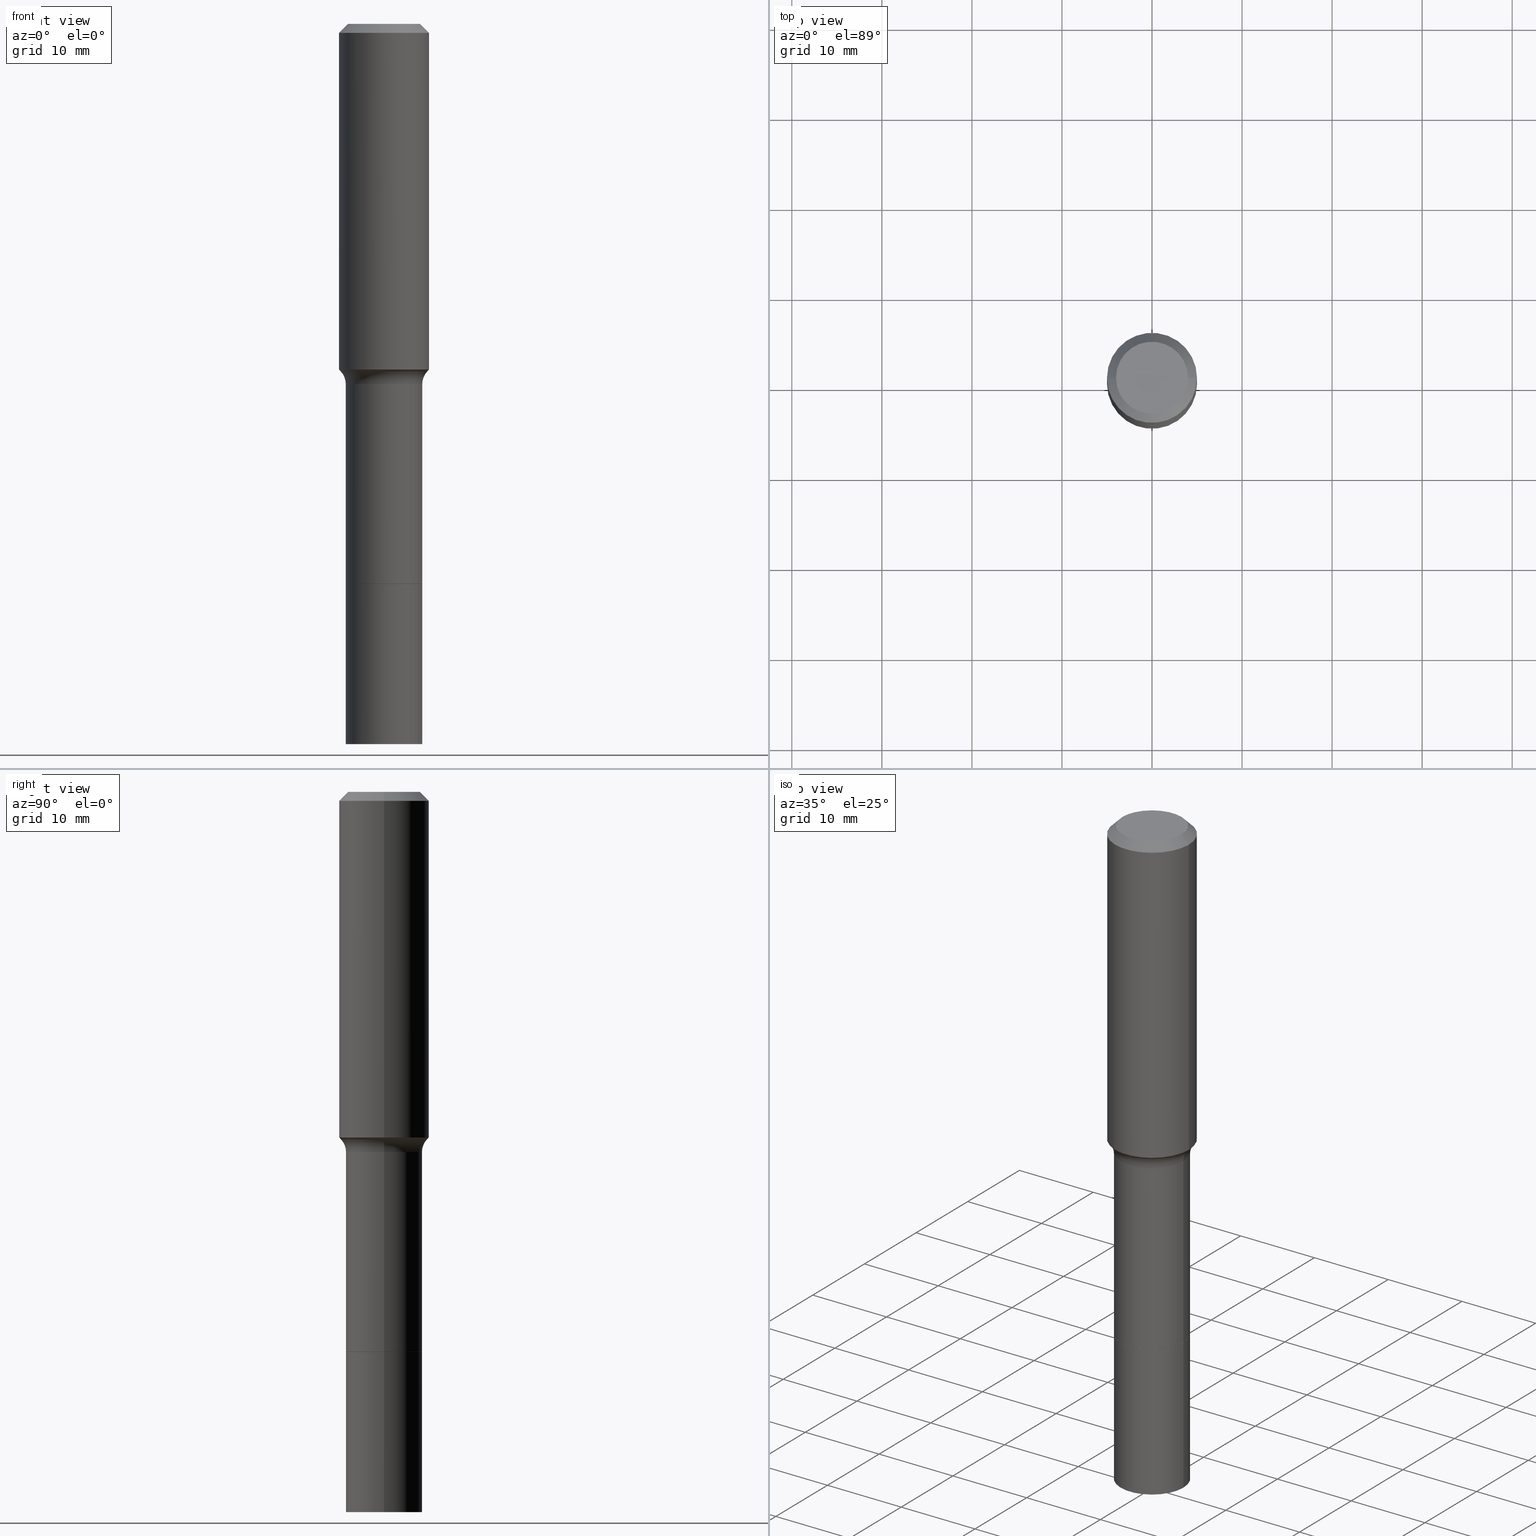
[diagram: canonical four-view strip — front | top / right | iso, engineering-drawing reading convention]
A machine part, canonical four-view strip (front | top / right | iso — engineering-drawing reading convention). The complete STEP part file that produces these views, byte-faithful:
ISO-10303-21;
HEADER;
FILE_DESCRIPTION (( 'STEP AP203' ),
    '1' );
FILE_NAME ('67132.STEP',
    '2025-04-01T15:28:44',
    ( '' ),
    ( '' ),
    'SwSTEP 2.0',
    'SolidWorks 2024',
    '' );
FILE_SCHEMA (( 'CONFIG_CONTROL_DESIGN' ));
ENDSEC;

DATA;
#1 = APPLICATION_PROTOCOL_DEFINITION ( 'international standard', 'config_control_design', 1994, #222 ) ;
#2 = AXIS2_PLACEMENT_3D ( 'NONE', #110, #280, #163 ) ;
#3 = DIRECTION ( 'NONE',  ( -2.445468806185136597E-29, 3.491481338843145583E-15, 1.000000000000000000 ) ) ;
#4 = CIRCLE ( 'NONE', #191, 0.1672999999999999210 ) ;
#5 = PLANE ( 'NONE',  #134 ) ;
#6 = CARTESIAN_POINT ( 'NONE',  ( 0.2472999999999998810, -7.224573186334231203E-15, -1.574600000000000222 ) ) ;
#7 = VERTEX_POINT ( 'NONE', #44 ) ;
#8 = MANIFOLD_SOLID_BREP ( 'Body-Move/Copy2[1]', #111 ) ;
#9 = DIRECTION ( 'NONE',  ( -2.445468806185136597E-29, 3.491481338843145583E-15, 1.000000000000000000 ) ) ;
#10 = CALENDAR_DATE ( 2025, 1, 4 ) ;
#11 = CC_DESIGN_APPROVAL ( #120, ( #200 ) ) ;
#12 = LINE ( 'NONE', #133, #299 ) ;
#13 = PLANE ( 'NONE',  #195 ) ;
#14 = CALENDAR_DATE ( 2025, 1, 4 ) ;
#15 = DIRECTION ( 'NONE',  ( 1.000000000000000000, -6.982962677686265922E-15, 4.876223630392693006E-29 ) ) ;
#16 = AXIS2_PLACEMENT_3D ( 'NONE', #186, #55, #112 ) ;
#17 = CYLINDRICAL_SURFACE ( 'NONE', #430, 0.1968500000000001082 ) ;
#18 = EDGE_CURVE ( 'NONE', #351, #142, #453, .T. ) ;
#19 = DIRECTION ( 'NONE',  ( -2.445468806185136597E-29, 3.491481338843145583E-15, 1.000000000000000000 ) ) ;
#20 = ORIENTED_EDGE ( 'NONE', *, *, #424, .F. ) ;
#21 = VECTOR ( 'NONE', #369, 39.37007874015748143 ) ;
#22 = DIRECTION ( 'NONE',  ( -2.445468806185136597E-29, 3.491481338843145583E-15, 1.000000000000000000 ) ) ;
#23 = EDGE_LOOP ( 'NONE', ( #151, #237, #504, #218 ) ) ;
#24 = AXIS2_PLACEMENT_3D ( 'NONE', #334, #295, #489 ) ;
#25 = FACE_OUTER_BOUND ( 'NONE', #117, .T. ) ;
#26 = CONICAL_SURFACE ( 'NONE', #96, 0.1668000000000000038, 0.7853981633975507526 ) ;
#27 = EDGE_LOOP ( 'NONE', ( #64, #409, #155, #149 ) ) ;
#28 = EDGE_CURVE ( 'NONE', #271, #289, #56, .T. ) ;
#29 = DIRECTION ( 'NONE',  ( 2.438088387897960049E-29, -3.491481338843145188E-15, -1.000000000000000000 ) ) ;
#30 = ORIENTED_EDGE ( 'NONE', *, *, #394, .F. ) ;
#31 = DIRECTION ( 'NONE',  ( 1.000000000000000000, -6.982962677686271444E-15, 0.000000000000000000 ) ) ;
#32 = DIRECTION ( 'NONE',  ( -2.445468806185136597E-29, 3.491481338843145583E-15, 1.000000000000000000 ) ) ;
#33 = PERSON_AND_ORGANIZATION_ROLE ( 'creator' ) ;
#34 = ORIENTED_EDGE ( 'NONE', *, *, #212, .F. ) ;
#35 = ADVANCED_FACE ( 'NONE', ( #353 ), #362, .T. ) ;
#36 = AXIS2_PLACEMENT_3D ( 'NONE', #188, #497, #229 ) ;
#37 = APPROVAL ( #107, 'UNSPECIFIED' ) ;
#38 = APPROVAL_ROLE ( '' ) ;
#39 = ORIENTED_EDGE ( 'NONE', *, *, #394, .T. ) ;
#40 = APPLICATION_PROTOCOL_DEFINITION ( 'international standard', 'config_control_design', 1994, #116 ) ;
#41 = ORIENTED_EDGE ( 'NONE', *, *, #376, .F. ) ;
#42 = EDGE_CURVE ( 'NONE', #289, #429, #108, .T. ) ;
#43 = DIRECTION ( 'NONE',  ( 1.000000000000000000, -6.982962677686264344E-15, 0.000000000000000000 ) ) ;
#44 = CARTESIAN_POINT ( 'NONE',  ( 0.1968500000000000250, -1.512055823412797189E-15, -0.03937000000000025896 ) ) ;
#45 = AXIS2_PLACEMENT_3D ( 'NONE', #6, #330, #82 ) ;
#46 = ORIENTED_EDGE ( 'NONE', *, *, #477, .T. ) ;
#47 = CARTESIAN_POINT ( 'NONE',  ( 0.1668000000000000038, -9.713999380929397844E-15, -2.448600000000000332 ) ) ;
#48 = ORIENTED_EDGE ( 'NONE', *, *, #480, .F. ) ;
#49 = LINE ( 'NONE', #416, #21 ) ;
#50 = VERTEX_POINT ( 'NONE', #357 ) ;
#51 = CIRCLE ( 'NONE', #16, 0.1673000000000002263 ) ;
#52 = EDGE_CURVE ( 'NONE', #201, #287, #103, .T. ) ;
#53 = DIRECTION ( 'NONE',  ( 2.438088387897960049E-29, -3.491481338843145188E-15, -1.000000000000000000 ) ) ;
#54 = DIRECTION ( 'NONE',  ( -2.445468806185136597E-29, 3.491481338843145583E-15, 1.000000000000000000 ) ) ;
#55 = DIRECTION ( 'NONE',  ( -2.445468806185136597E-29, 3.491481338843145583E-15, 1.000000000000000000 ) ) ;
#56 = CIRCLE ( 'NONE', #242, 0.1673000000000000043 ) ;
#57 = CC_DESIGN_APPROVAL ( #37, ( #298 ) ) ;
#58 = DIRECTION ( 'NONE',  ( 1.000000000000000000, -6.982962677686266711E-15, 4.876176775795935793E-29 ) ) ;
#59 = EDGE_CURVE ( 'NONE', #429, #339, #190, .T. ) ;
#60 = ORIENTED_EDGE ( 'NONE', *, *, #205, .T. ) ;
#61 = DIRECTION ( 'NONE',  ( 1.000000000000000000, -6.982962677686272233E-15, 0.000000000000000000 ) ) ;
#62 = ORIENTED_EDGE ( 'NONE', *, *, #18, .T. ) ;
#63 = DIRECTION ( 'NONE',  ( -0.7071067811866199593, 7.493145998870616062E-15, 0.7071067811864750752 ) ) ;
#64 = ORIENTED_EDGE ( 'NONE', *, *, #517, .T. ) ;
#65 = DIRECTION ( 'NONE',  ( 1.000000000000000000, -6.982962677686266711E-15, 0.000000000000000000 ) ) ;
#66 = VECTOR ( 'NONE', #274, 39.37007874015748143 ) ;
#67 = ORIENTED_EDGE ( 'NONE', *, *, #86, .T. ) ;
#68 = EDGE_LOOP ( 'NONE', ( #434, #71 ) ) ;
#69 = DIRECTION ( 'NONE',  ( 1.000000000000000000, -6.982962677686268288E-15, 0.000000000000000000 ) ) ;
#70 = EDGE_CURVE ( 'NONE', #307, #167, #233, .T. ) ;
#71 = ORIENTED_EDGE ( 'NONE', *, *, #310, .F. ) ;
#72 = DATE_TIME_ROLE ( 'creation_date' ) ;
#73 = DIRECTION ( 'NONE',  ( -2.438088387897960049E-29, 3.491481338843145188E-15, 1.000000000000000000 ) ) ;
#74 = AXIS2_PLACEMENT_3D ( 'NONE', #138, #236, #61 ) ;
#75 = DIRECTION ( 'NONE',  ( -2.445468806185136597E-29, 3.491481338843145583E-15, 1.000000000000000000 ) ) ;
#76 = ADVANCED_FACE ( 'NONE', ( #158 ), #5, .F. ) ;
#77 = CARTESIAN_POINT ( 'NONE',  ( 0.1887917038704662043, -6.625517174344292647E-15, -1.520040131195000255 ) ) ;
#78 = EDGE_LOOP ( 'NONE', ( #48, #147, #313, #311 ) ) ;
#79 = ADVANCED_FACE ( 'NONE', ( #484 ), #198, .T. ) ;
#80 = ORIENTED_EDGE ( 'NONE', *, *, #156, .T. ) ;
#81 = ORIENTED_EDGE ( 'NONE', *, *, #424, .T. ) ;
#82 = DIRECTION ( 'NONE',  ( 1.000000000000000000, -6.982962677686265133E-15, 0.000000000000000000 ) ) ;
#83 = ORIENTED_EDGE ( 'NONE', *, *, #235, .F. ) ;
#84 = APPROVAL_ROLE ( '' ) ;
#85 = DIRECTION ( 'NONE',  ( 1.000000000000000000, -6.982962677686265133E-15, 0.000000000000000000 ) ) ;
#86 = EDGE_CURVE ( 'NONE', #142, #351, #427, .T. ) ;
#87 = PERSON ( 'UNSPECIFIED', 'UNSPECIFIED', 'UNSPECIFIED', ('UNSPECIFIED'), ('UNSPECIFIED'), ('UNSPECIFIED') ) ;
#88 = DIRECTION ( 'NONE',  ( 0.6819983600625041387, -2.208861293262532995E-15, 0.7313537016191650197 ) ) ;
#89 = AXIS2_PLACEMENT_3D ( 'NONE', #400, #359, #329 ) ;
#90 = CIRCLE ( 'NONE', #254, 0.1968500000000001915 ) ;
#91 = PERSON_AND_ORGANIZATION ( #87, #448 ) ;
#92 = CARTESIAN_POINT ( 'NONE',  ( -0.1673000000000000043, -5.833852993955513627E-15, -2.448100000000000165 ) ) ;
#93 = CARTESIAN_POINT ( 'NONE',  ( 0.1968500000000001082, -1.374596203102542397E-15, 9.598753983154305062E-30 ) ) ;
#94 = DIRECTION ( 'NONE',  ( 1.000000000000000000, -6.982962677686265922E-15, 0.000000000000000000 ) ) ;
#95 = ORIENTED_EDGE ( 'NONE', *, *, #52, .F. ) ;
#96 = AXIS2_PLACEMENT_3D ( 'NONE', #508, #97, #378 ) ;
#97 = DIRECTION ( 'NONE',  ( -2.445468806185136597E-29, 3.491481338843145583E-15, 1.000000000000000000 ) ) ;
#98 = EDGE_LOOP ( 'NONE', ( #67, #80, #194, #226 ) ) ;
#99 = CARTESIAN_POINT ( 'NONE',  ( 0.1673000000000001153, -9.717490862268239274E-15, -2.448600000000000332 ) ) ;
#100 = ORIENTED_EDGE ( 'NONE', *, *, #135, .F. ) ;
#101 = FACE_OUTER_BOUND ( 'NONE', #23, .T. ) ;
#102 = ORIENTED_EDGE ( 'NONE', *, *, #206, .F. ) ;
#103 = CIRCLE ( 'NONE', #181, 0.1574800000000000089 ) ;
#104 = AXIS2_PLACEMENT_3D ( 'NONE', #505, #265, #381 ) ;
#105 = ORIENTED_EDGE ( 'NONE', *, *, #70, .T. ) ;
#106 = EDGE_CURVE ( 'NONE', #232, #50, #454, .T. ) ;
#107 = APPROVAL_STATUS ( 'not_yet_approved' ) ;
#108 = LINE ( 'NONE', #327, #411 ) ;
#109 = DATE_AND_TIME ( #475, #421 ) ;
#110 = CARTESIAN_POINT ( 'NONE',  ( 5.987974918824925266E-29, -8.549241206291326487E-15, -2.448600000000000332 ) ) ;
#111 = CLOSED_SHELL ( 'NONE', ( #266, #360, #180, #417 ) ) ;
#112 = DIRECTION ( 'NONE',  ( 1.000000000000000000, -6.982962677686271444E-15, 0.000000000000000000 ) ) ;
#113 = CARTESIAN_POINT ( 'NONE',  ( 5.987974918824925266E-29, -8.549241206291326487E-15, -2.448600000000000332 ) ) ;
#114 = CONICAL_SURFACE ( 'NONE', #398, 0.1887917038704660655, 0.7504915783575695221 ) ;
#115 = LOCAL_TIME ( 11, 28, 44.00000000000000000, #121 ) ;
#116 = APPLICATION_CONTEXT ( 'configuration controlled 3d designs of mechanical parts and assemblies' ) ;
#117 = EDGE_LOOP ( 'NONE', ( #392, #389 ) ) ;
#118 = CARTESIAN_POINT ( 'NONE',  ( -0.2472999999999998810, -3.740514330607691625E-15, -1.574600000000000222 ) ) ;
#119 = CARTESIAN_POINT ( 'NONE',  ( 0.1968500000000000250, -1.487948651171581601E-15, -0.03937000000000025896 ) ) ;
#120 = APPROVAL ( #399, 'UNSPECIFIED' ) ;
#121 = COORDINATED_UNIVERSAL_TIME_OFFSET ( 5, 0, .BEHIND. ) ;
#122 = LINE ( 'NONE', #288, #388 ) ;
#123 = ORIENTED_EDGE ( 'NONE', *, *, #227, .F. ) ;
#124 = DATE_AND_TIME ( #450, #372 ) ;
#125 = AXIS2_PLACEMENT_3D ( 'NONE', #160, #323, #365 ) ;
#126 = CYLINDRICAL_SURFACE ( 'NONE', #488, 0.1673000000000001153 ) ;
#127 = ADVANCED_FACE ( 'NONE', ( #209 ), #161, .T. ) ;
#128 = PERSON_AND_ORGANIZATION ( #87, #448 ) ;
#129 = DIRECTION ( 'NONE',  ( -2.445468806185136597E-29, 3.491481338843145583E-15, 1.000000000000000000 ) ) ;
#130 = APPROVAL ( #132, 'UNSPECIFIED' ) ;
#131 = FACE_OUTER_BOUND ( 'NONE', #426, .T. ) ;
#132 = APPROVAL_STATUS ( 'not_yet_approved' ) ;
#133 = CARTESIAN_POINT ( 'NONE',  ( 0.1887917038704660655, -6.625517174344292647E-15, -1.520040131195000255 ) ) ;
#134 = AXIS2_PLACEMENT_3D ( 'NONE', #319, #73, #474 ) ;
#135 = EDGE_CURVE ( 'NONE', #201, #7, #486, .T. ) ;
#136 = VECTOR ( 'NONE', #267, 39.37007874015748143 ) ;
#137 = CARTESIAN_POINT ( 'NONE',  ( 9.627810689950945397E-31, -1.374596203102555315E-16, -0.03937000000000025896 ) ) ;
#138 = CARTESIAN_POINT ( 'NONE',  ( 5.987974918824925266E-29, -8.549241206291326487E-15, -2.448600000000000332 ) ) ;
#139 = AXIS2_PLACEMENT_3D ( 'NONE', #406, #54, #375 ) ;
#140 = VERTEX_POINT ( 'NONE', #512 ) ;
#141 = DIRECTION ( 'NONE',  ( -2.445468806185136597E-29, 3.491481338843145583E-15, 1.000000000000000000 ) ) ;
#142 = VERTEX_POINT ( 'NONE', #77 ) ;
#143 = DESIGN_CONTEXT ( 'detailed design', #116, 'design' ) ;
#144 = AXIS2_PLACEMENT_3D ( 'NONE', #118, #162, #514 ) ;
#145 = APPROVAL_PERSON_ORGANIZATION ( #91, #130, #84 ) ;
#146 = DIRECTION ( 'NONE',  ( -2.445468806185136597E-29, 3.491481338843145583E-15, 1.000000000000000000 ) ) ;
#147 = ORIENTED_EDGE ( 'NONE', *, *, #86, .F. ) ;
#148 = FACE_OUTER_BOUND ( 'NONE', #395, .T. ) ;
#149 = ORIENTED_EDGE ( 'NONE', *, *, #42, .F. ) ;
#150 = CYLINDRICAL_SURFACE ( 'NONE', #104, 0.1672999999999999488 ) ;
#151 = ORIENTED_EDGE ( 'NONE', *, *, #494, .F. ) ;
#152 = CC_DESIGN_PERSON_AND_ORGANIZATION_ASSIGNMENT ( #331, #214, ( #308 ) ) ;
#153 =( CONVERSION_BASED_UNIT ( 'INCH', #166 ) LENGTH_UNIT ( ) NAMED_UNIT ( #202 ) );
#154 = AXIS2_PLACEMENT_3D ( 'NONE', #328, #358, #473 ) ;
#155 = ORIENTED_EDGE ( 'NONE', *, *, #59, .F. ) ;
#156 = EDGE_CURVE ( 'NONE', #351, #384, #122, .T. ) ;
#157 = LINE ( 'NONE', #440, #326 ) ;
#158 = FACE_OUTER_BOUND ( 'NONE', #68, .T. ) ;
#159 = APPROVAL_ROLE ( '' ) ;
#160 = CARTESIAN_POINT ( 'NONE',  ( 9.627810689950945397E-31, -1.374596203102555315E-16, -0.03937000000000025896 ) ) ;
#161 = CONICAL_SURFACE ( 'NONE', #300, 0.1668000000000000038, 0.7853981633975507526 ) ;
#162 = DIRECTION ( 'NONE',  ( 7.105427357601001859E-15, 1.000000000000000000, -3.491481338843145583E-15 ) ) ;
#163 = DIRECTION ( 'NONE',  ( 1.000000000000000000, -6.982962677686269866E-15, 0.000000000000000000 ) ) ;
#164 = TOROIDAL_SURFACE ( 'NONE', #346, 0.2472999999999998810, 0.07999999999999993228 ) ;
#165 = CIRCLE ( 'NONE', #503, 0.1673000000000002263 ) ;
#166 = LENGTH_MEASURE_WITH_UNIT ( LENGTH_MEASURE( 0.02539999999999999897 ), #483 );
#167 = VERTEX_POINT ( 'NONE', #487 ) ;
#168 = CARTESIAN_POINT ( 'NONE',  ( 0.1574800000000000089, -1.284169937930321189E-15, 3.855188123724205385E-18 ) ) ;
#169 = EDGE_CURVE ( 'NONE', #384, #230, #261, .T. ) ;
#170 = VERTEX_POINT ( 'NONE', #264 ) ;
#171 = AXIS2_PLACEMENT_3D ( 'NONE', #173, #452, #85 ) ;
#172 = AXIS2_PLACEMENT_3D ( 'NONE', #204, #3, #437 ) ;
#173 = CARTESIAN_POINT ( 'NONE',  ( 5.987974918824925266E-29, -8.549241206291326487E-15, -2.448600000000000332 ) ) ;
#174 = PERSON_AND_ORGANIZATION ( #87, #448 ) ;
#175 = DIRECTION ( 'NONE',  ( 1.000000000000000000, -6.982962677686267499E-15, 0.000000000000000000 ) ) ;
#176 = EDGE_CURVE ( 'NONE', #339, #429, #4, .T. ) ;
#177 = CARTESIAN_POINT ( 'NONE',  ( 5.987974918824925266E-29, -8.549241206291326487E-15, -2.448600000000000332 ) ) ;
#178 = SECURITY_CLASSIFICATION_LEVEL ( 'unclassified' ) ;
#179 = CARTESIAN_POINT ( 'NONE',  ( -0.1574800000000000089, 1.168406772637159618E-15, 3.855188123707939751E-18 ) ) ;
#180 = ADVANCED_FACE ( 'NONE', ( #496 ), #451, .T. ) ;
#181 = AXIS2_PLACEMENT_3D ( 'NONE', #361, #75, #241 ) ;
#182 = TOROIDAL_SURFACE ( 'NONE', #502, 0.2472999999999998810, 0.07999999999999993228 ) ;
#183 = CIRCLE ( 'NONE', #438, 0.1968500000000000250 ) ;
#184 = FACE_OUTER_BOUND ( 'NONE', #240, .T. ) ;
#185 = ORIENTED_EDGE ( 'NONE', *, *, #212, .T. ) ;
#186 = CARTESIAN_POINT ( 'NONE',  ( 7.702248551960706711E-29, -1.099676962482037231E-14, -3.149600000000000399 ) ) ;
#187 = EDGE_LOOP ( 'NONE', ( #100, #282, #39, #278 ) ) ;
#188 = CARTESIAN_POINT ( 'NONE',  ( 7.702248551960706711E-29, -1.099676962482037231E-14, -3.149600000000000399 ) ) ;
#189 = ORIENTED_EDGE ( 'NONE', *, *, #385, .T. ) ;
#190 = CIRCLE ( 'NONE', #478, 0.1672999999999999210 ) ;
#191 = AXIS2_PLACEMENT_3D ( 'NONE', #410, #458, #175 ) ;
#192 = CIRCLE ( 'NONE', #45, 0.07999999999999993228 ) ;
#193 = PLANE ( 'NONE',  #36 ) ;
#194 = ORIENTED_EDGE ( 'NONE', *, *, #354, .F. ) ;
#195 = AXIS2_PLACEMENT_3D ( 'NONE', #377, #53, #412 ) ;
#196 = LINE ( 'NONE', #422, #224 ) ;
#197 = ORIENTED_EDGE ( 'NONE', *, *, #42, .T. ) ;
#198 = CYLINDRICAL_SURFACE ( 'NONE', #469, 0.1672999999999999488 ) ;
#199 = DIRECTION ( 'NONE',  ( -2.445468806185136877E-29, 3.491481338843145188E-15, 1.000000000000000000 ) ) ;
#200 = PRODUCT_DEFINITION_FORMATION_WITH_SPECIFIED_SOURCE ( 'ANY', '', #491, .NOT_KNOWN. ) ;
#201 = VERTEX_POINT ( 'NONE', #168 ) ;
#202 = DIMENSIONAL_EXPONENTS ( 1.000000000000000000, 0.000000000000000000, 0.000000000000000000, 0.000000000000000000, 0.000000000000000000, 0.000000000000000000, 0.000000000000000000 ) ;
#203 = DIRECTION ( 'NONE',  ( -2.445468806185136597E-29, 3.491481338843145583E-15, 1.000000000000000000 ) ) ;
#204 = CARTESIAN_POINT ( 'NONE',  ( 3.717210724986936016E-29, -5.307191752360030282E-15, -1.520040131195000255 ) ) ;
#205 = EDGE_CURVE ( 'NONE', #142, #230, #12, .T. ) ;
#206 = EDGE_CURVE ( 'NONE', #230, #7, #296, .T. ) ;
#207 = DIRECTION ( 'NONE',  ( 1.000000000000000000, -6.982962677686272233E-15, 0.000000000000000000 ) ) ;
#208 = AXIS2_PLACEMENT_3D ( 'NONE', #404, #32, #250 ) ;
#209 = FACE_OUTER_BOUND ( 'NONE', #373, .T. ) ;
#210 = AXIS2_PLACEMENT_3D ( 'NONE', #312, #141, #58 ) ;
#211 = DIRECTION ( 'NONE',  ( -2.445468806185136597E-29, 3.491481338843145583E-15, 1.000000000000000000 ) ) ;
#212 = EDGE_CURVE ( 'NONE', #167, #307, #367, .T. ) ;
#213 = VECTOR ( 'NONE', #215, 39.37007874015748143 ) ;
#214 = PERSON_AND_ORGANIZATION_ROLE ( 'classification_officer' ) ;
#215 = DIRECTION ( 'NONE',  ( 0.7071067811866199593, -2.468850131083015945E-15, 0.7071067811864750752 ) ) ;
#216 = FACE_OUTER_BOUND ( 'NONE', #342, .T. ) ;
#217 =( GEOMETRIC_REPRESENTATION_CONTEXT ( 3 ) GLOBAL_UNCERTAINTY_ASSIGNED_CONTEXT ( ( #219 ) ) GLOBAL_UNIT_ASSIGNED_CONTEXT ( ( #153, #401, #363 ) ) REPRESENTATION_CONTEXT ( 'NONE', 'WORKASPACE' ) );
#218 = ORIENTED_EDGE ( 'NONE', *, *, #442, .F. ) ;
#219 = UNCERTAINTY_MEASURE_WITH_UNIT (LENGTH_MEASURE( 1.000000000000000082E-05 ), #153, 'distance_accuracy_value', 'NONE');
#220 = FACE_OUTER_BOUND ( 'NONE', #432, .T. ) ;
#221 = LINE ( 'NONE', #47, #213 ) ;
#222 = APPLICATION_CONTEXT ( 'configuration controlled 3d designs of mechanical parts and assemblies' ) ;
#223 = DIRECTION ( 'NONE',  ( 1.000000000000000000, -6.982962677686268288E-15, 0.000000000000000000 ) ) ;
#224 = VECTOR ( 'NONE', #347, 39.37007874015748143 ) ;
#225 = DIRECTION ( 'NONE',  ( -2.445468806185136597E-29, 3.491481338843145583E-15, 1.000000000000000000 ) ) ;
#226 = ORIENTED_EDGE ( 'NONE', *, *, #205, .F. ) ;
#227 = EDGE_CURVE ( 'NONE', #232, #289, #221, .T. ) ;
#228 = CC_DESIGN_PERSON_AND_ORGANIZATION_ASSIGNMENT ( #128, #492, ( #200 ) ) ;
#229 = DIRECTION ( 'NONE',  ( -1.000000000000000000, 6.982962677686265922E-15, -4.876176775795935793E-29 ) ) ;
#230 = VERTEX_POINT ( 'NONE', #366 ) ;
#231 = PLANE ( 'NONE',  #336 ) ;
#232 = VERTEX_POINT ( 'NONE', #256 ) ;
#233 = CIRCLE ( 'NONE', #2, 0.1673000000000000043 ) ;
#234 = VECTOR ( 'NONE', #445, 39.37007874015748143 ) ;
#235 = EDGE_CURVE ( 'NONE', #271, #339, #49, .T. ) ;
#236 = DIRECTION ( 'NONE',  ( -2.445468806185136597E-29, 3.491481338843145583E-15, 1.000000000000000000 ) ) ;
#237 = ORIENTED_EDGE ( 'NONE', *, *, #169, .T. ) ;
#238 = ADVANCED_FACE ( 'NONE', ( #216 ), #182, .F. ) ;
#239 = PERSON_AND_ORGANIZATION ( #87, #448 ) ;
#240 = EDGE_LOOP ( 'NONE', ( #83, #257, #197, #286 ) ) ;
#241 = DIRECTION ( 'NONE',  ( 1.000000000000000000, -6.982962677686265922E-15, 4.876223630392693006E-29 ) ) ;
#242 = AXIS2_PLACEMENT_3D ( 'NONE', #518, #476, #252 ) ;
#243 = PERSON_AND_ORGANIZATION ( #87, #448 ) ;
#244 = APPROVAL_PERSON_ORGANIZATION ( #320, #37, #159 ) ;
#245 = DIRECTION ( 'NONE',  ( -2.445468806185136597E-29, 3.491481338843145583E-15, 1.000000000000000000 ) ) ;
#246 = ADVANCED_FACE ( 'NONE', ( #371 ), #164, .F. ) ;
#247 = CARTESIAN_POINT ( 'NONE',  ( 7.702248551960706711E-29, -1.099676962482037231E-14, -3.149600000000000399 ) ) ;
#248 = CARTESIAN_POINT ( 'NONE',  ( 0.000000000000000000, 0.000000000000000000, 0.000000000000000000 ) ) ;
#249 = ORIENTED_EDGE ( 'NONE', *, *, #480, .T. ) ;
#250 = DIRECTION ( 'NONE',  ( 1.000000000000000000, -6.982962677686268288E-15, 0.000000000000000000 ) ) ;
#251 = PERSON_AND_ORGANIZATION_ROLE ( 'design_supplier' ) ;
#252 = DIRECTION ( 'NONE',  ( 1.000000000000000000, -6.982962677686264344E-15, 0.000000000000000000 ) ) ;
#253 = ADVANCED_FACE ( 'NONE', ( #131 ), #13, .F. ) ;
#254 = AXIS2_PLACEMENT_3D ( 'NONE', #383, #22, #65 ) ;
#255 = ORIENTED_EDGE ( 'NONE', *, *, #135, .T. ) ;
#256 = CARTESIAN_POINT ( 'NONE',  ( 0.1668000000000000038, -9.713999380929397844E-15, -2.448600000000000332 ) ) ;
#257 = ORIENTED_EDGE ( 'NONE', *, *, #28, .T. ) ;
#258 = SHAPE_DEFINITION_REPRESENTATION ( #340, #333 ) ;
#259 = DIRECTION ( 'NONE',  ( 1.000000000000000000, -6.982962677686269077E-15, 4.883557194083114022E-29 ) ) ;
#260 = ORIENTED_EDGE ( 'NONE', *, *, #297, .F. ) ;
#261 = CIRCLE ( 'NONE', #24, 0.1968500000000001915 ) ;
#262 = CARTESIAN_POINT ( 'NONE',  ( 3.850635182219116347E-29, -5.497686516142417553E-15, -1.574600000000000222 ) ) ;
#263 = CC_DESIGN_DATE_AND_TIME_ASSIGNMENT ( #124, #415, ( #308 ) ) ;
#264 = CARTESIAN_POINT ( 'NONE',  ( -0.1673000000000002263, -8.584267418629199390E-15, -3.149600000000000399 ) ) ;
#265 = DIRECTION ( 'NONE',  ( -2.445468806185136597E-29, 3.491481338843145583E-15, 1.000000000000000000 ) ) ;
#266 = ADVANCED_FACE ( 'NONE', ( #220 ), #126, .T. ) ;
#267 = DIRECTION ( 'NONE',  ( -0.7071067811865453523, 2.468850131082234184E-15, -0.7071067811865496822 ) ) ;
#268 = ORIENTED_EDGE ( 'NONE', *, *, #156, .F. ) ;
#269 = LOCAL_TIME ( 11, 28, 44.00000000000000000, #370 ) ;
#270 = CARTESIAN_POINT ( 'NONE',  ( -0.1672999999999999210, -5.833852993955514416E-15, -1.574600000000000222 ) ) ;
#271 = VERTEX_POINT ( 'NONE', #92 ) ;
#272 = DIRECTION ( 'NONE',  ( -1.000000000000000000, 6.982962677686265922E-15, 0.000000000000000000 ) ) ;
#273 = ORIENTED_EDGE ( 'NONE', *, *, #70, .F. ) ;
#274 = DIRECTION ( 'NONE',  ( -2.445468806185136877E-29, 3.491481338843145188E-15, 1.000000000000000000 ) ) ;
#275 = EDGE_LOOP ( 'NONE', ( #185, #105 ) ) ;
#276 = EDGE_CURVE ( 'NONE', #287, #201, #284, .T. ) ;
#277 = AXIS2_PLACEMENT_3D ( 'NONE', #291, #9, #15 ) ;
#278 = ORIENTED_EDGE ( 'NONE', *, *, #442, .T. ) ;
#279 = COORDINATED_UNIVERSAL_TIME_OFFSET ( 5, 0, .BEHIND. ) ;
#280 = DIRECTION ( 'NONE',  ( -2.445468806185136597E-29, 3.491481338843145583E-15, 1.000000000000000000 ) ) ;
#281 = CARTESIAN_POINT ( 'NONE',  ( 5.986752184421833586E-29, -8.547495465621905772E-15, -2.448100000000000165 ) ) ;
#282 = ORIENTED_EDGE ( 'NONE', *, *, #276, .F. ) ;
#283 = DATE_AND_TIME ( #322, #292 ) ;
#284 = CIRCLE ( 'NONE', #277, 0.1574800000000000089 ) ;
#285 = DIRECTION ( 'NONE',  ( -2.445468806185136597E-29, 3.491481338843145583E-15, 1.000000000000000000 ) ) ;
#286 = ORIENTED_EDGE ( 'NONE', *, *, #176, .F. ) ;
#287 = VERTEX_POINT ( 'NONE', #179 ) ;
#288 = CARTESIAN_POINT ( 'NONE',  ( -0.1887917038704660655, -3.965746014790713751E-15, -1.520040131195000255 ) ) ;
#289 = VERTEX_POINT ( 'NONE', #335 ) ;
#290 = APPROVAL_DATE_TIME ( #485, #130 ) ;
#291 = CARTESIAN_POINT ( 'NONE',  ( -9.427742298522567634E-47, 1.346031739168368355E-32, 3.855188123715870730E-18 ) ) ;
#292 = LOCAL_TIME ( 11, 28, 44.00000000000000000, #279 ) ;
#293 = EDGE_CURVE ( 'NONE', #7, #500, #405, .T. ) ;
#294 = COORDINATED_UNIVERSAL_TIME_OFFSET ( 5, 0, .BEHIND. ) ;
#295 = DIRECTION ( 'NONE',  ( -2.445468806185136597E-29, 3.491481338843145583E-15, 1.000000000000000000 ) ) ;
#296 = LINE ( 'NONE', #93, #303 ) ;
#297 = EDGE_CURVE ( 'NONE', #142, #429, #192, .T. ) ;
#298 = PRODUCT_DEFINITION ( 'UNKNOWN', '', #200, #143 ) ;
#299 = VECTOR ( 'NONE', #88, 39.37007874015748854 ) ;
#300 = AXIS2_PLACEMENT_3D ( 'NONE', #113, #441, #207 ) ;
#301 = DIRECTION ( 'NONE',  ( -2.445468806185136597E-29, 3.491481338843145583E-15, 1.000000000000000000 ) ) ;
#302 = DIRECTION ( 'NONE',  ( -2.445468806185136597E-29, 3.491481338843145583E-15, 1.000000000000000000 ) ) ;
#303 = VECTOR ( 'NONE', #457, 39.37007874015748143 ) ;
#304 = LINE ( 'NONE', #309, #136 ) ;
#305 = EDGE_LOOP ( 'NONE', ( #460, #482, #447, #102 ) ) ;
#306 = CARTESIAN_POINT ( 'NONE',  ( 5.987974918824925266E-29, -8.549241206291326487E-15, -2.448600000000000332 ) ) ;
#307 = VERTEX_POINT ( 'NONE', #408 ) ;
#308 = SECURITY_CLASSIFICATION ( '', '', #178 ) ;
#309 = CARTESIAN_POINT ( 'NONE',  ( -0.1968500000000000250, 1.237136582792286225E-15, -0.03937000000000025896 ) ) ;
#310 = EDGE_CURVE ( 'NONE', #50, #232, #390, .T. ) ;
#311 = ORIENTED_EDGE ( 'NONE', *, *, #59, .T. ) ;
#312 = CARTESIAN_POINT ( 'NONE',  ( 0.000000000000000000, 0.000000000000000000, 0.000000000000000000 ) ) ;
#313 = ORIENTED_EDGE ( 'NONE', *, *, #297, .T. ) ;
#314 = ADVANCED_FACE ( 'NONE', ( #101 ), #17, .T. ) ;
#315 = CC_DESIGN_DATE_AND_TIME_ASSIGNMENT ( #109, #72, ( #298 ) ) ;
#316 = LINE ( 'NONE', #391, #481 ) ;
#317 = EDGE_LOOP ( 'NONE', ( #20, #348, #189, #273 ) ) ;
#318 = CIRCLE ( 'NONE', #144, 0.07999999999999993228 ) ;
#319 = CARTESIAN_POINT ( 'NONE',  ( 5.987974918824925266E-29, -8.549241206291326487E-15, -2.448600000000000332 ) ) ;
#320 = PERSON_AND_ORGANIZATION ( #87, #448 ) ;
#321 = ORIENTED_EDGE ( 'NONE', *, *, #376, .T. ) ;
#322 = CALENDAR_DATE ( 2025, 1, 4 ) ;
#323 = DIRECTION ( 'NONE',  ( 2.445468806185136597E-29, -3.491481338843145583E-15, -1.000000000000000000 ) ) ;
#324 = CLOSED_SHELL ( 'NONE', ( #127, #349, #414, #506, #238, #79, #435, #246, #468, #314, #35, #253, #76, #431 ) ) ;
#325 = FACE_OUTER_BOUND ( 'NONE', #98, .T. ) ;
#326 = VECTOR ( 'NONE', #199, 39.37007874015748143 ) ;
#327 = CARTESIAN_POINT ( 'NONE',  ( 0.1672999999999999488, -1.168249655976912195E-15, 8.157843745906598810E-30 ) ) ;
#328 = CARTESIAN_POINT ( 'NONE',  ( 0.000000000000000000, 0.000000000000000000, 0.000000000000000000 ) ) ;
#329 = DIRECTION ( 'NONE',  ( 1.000000000000000000, -6.982962677686272233E-15, 0.000000000000000000 ) ) ;
#330 = DIRECTION ( 'NONE',  ( -6.982962677686266711E-15, -1.000000000000000000, 3.491481338843145583E-15 ) ) ;
#331 = PERSON_AND_ORGANIZATION ( #87, #448 ) ;
#332 = CARTESIAN_POINT ( 'NONE',  ( 3.850635182219116347E-29, -5.497686516142417553E-15, -1.574600000000000222 ) ) ;
#333 = ADVANCED_BREP_SHAPE_REPRESENTATION ( '67132', ( #8, #355, #154 ), #217 ) ;
#334 = CARTESIAN_POINT ( 'NONE',  ( 3.696078292805706641E-29, -5.277020239880085119E-15, -1.511398666569575111 ) ) ;
#335 = CARTESIAN_POINT ( 'NONE',  ( 0.1673000000000000043, -9.715745121598816981E-15, -2.448100000000000165 ) ) ;
#336 = AXIS2_PLACEMENT_3D ( 'NONE', #306, #29, #461 ) ;
#337 = CC_DESIGN_PERSON_AND_ORGANIZATION_ASSIGNMENT ( #174, #251, ( #200 ) ) ;
#338 = DIRECTION ( 'NONE',  ( 1.000000000000000000, -6.982962677686266711E-15, 4.876176775795935793E-29 ) ) ;
#339 = VERTEX_POINT ( 'NONE', #270 ) ;
#340 = PRODUCT_DEFINITION_SHAPE ( 'NONE', 'NONE',  #298 ) ;
#341 = FACE_OUTER_BOUND ( 'NONE', #420, .T. ) ;
#342 = EDGE_LOOP ( 'NONE', ( #443, #249, #465, #260 ) ) ;
#343 = CARTESIAN_POINT ( 'NONE',  ( 0.000000000000000000, 0.000000000000000000, 0.000000000000000000 ) ) ;
#344 = ORIENTED_EDGE ( 'NONE', *, *, #293, .T. ) ;
#345 = CC_DESIGN_SECURITY_CLASSIFICATION ( #308, ( #200 ) ) ;
#346 = AXIS2_PLACEMENT_3D ( 'NONE', #262, #301, #490 ) ;
#347 = DIRECTION ( 'NONE',  ( -2.445468806185136877E-29, 3.491481338843145188E-15, 1.000000000000000000 ) ) ;
#348 = ORIENTED_EDGE ( 'NONE', *, *, #510, .T. ) ;
#349 = ADVANCED_FACE ( 'NONE', ( #341 ), #495, .T. ) ;
#350 = FACE_OUTER_BOUND ( 'NONE', #507, .T. ) ;
#351 = VERTEX_POINT ( 'NONE', #419 ) ;
#352 = PERSON_AND_ORGANIZATION_ROLE ( 'design_owner' ) ;
#353 = FACE_OUTER_BOUND ( 'NONE', #187, .T. ) ;
#354 = EDGE_CURVE ( 'NONE', #230, #384, #90, .T. ) ;
#355 = MANIFOLD_SOLID_BREP ( 'Body-Move/Copy2[2]', #324 ) ;
#356 = COORDINATED_UNIVERSAL_TIME_OFFSET ( 5, 0, .BEHIND. ) ;
#357 = CARTESIAN_POINT ( 'NONE',  ( -0.1668000000000000038, -7.361406695869368543E-15, -2.448600000000000332 ) ) ;
#358 = DIRECTION ( 'NONE',  ( 0.000000000000000000, 0.000000000000000000, 1.000000000000000000 ) ) ;
#359 = DIRECTION ( 'NONE',  ( -2.445468806185136597E-29, 3.491481338843145583E-15, 1.000000000000000000 ) ) ;
#360 = ADVANCED_FACE ( 'NONE', ( #25 ), #193, .T. ) ;
#361 = CARTESIAN_POINT ( 'NONE',  ( -9.427742298522567634E-47, 1.346031739168368355E-32, 3.855188123715870730E-18 ) ) ;
#362 = CONICAL_SURFACE ( 'NONE', #125, 0.1968500000000000250, 0.7853981633974452814 ) ;
#363 =( NAMED_UNIT ( * ) SI_UNIT ( $, .STERADIAN. ) SOLID_ANGLE_UNIT ( ) );
#364 = AXIS2_PLACEMENT_3D ( 'NONE', #137, #302, #449 ) ;
#365 = DIRECTION ( 'NONE',  ( -1.000000000000000000, 6.982962677686265922E-15, 0.000000000000000000 ) ) ;
#366 = CARTESIAN_POINT ( 'NONE',  ( 0.1968500000000001915, -6.651616442982627516E-15, -1.511398666569575111 ) ) ;
#367 = CIRCLE ( 'NONE', #139, 0.1673000000000000043 ) ;
#368 = ORIENTED_EDGE ( 'NONE', *, *, #52, .T. ) ;
#369 = DIRECTION ( 'NONE',  ( -2.445468806185136877E-29, 3.491481338843145188E-15, 1.000000000000000000 ) ) ;
#370 = COORDINATED_UNIVERSAL_TIME_OFFSET ( 5, 0, .BEHIND. ) ;
#371 = FACE_OUTER_BOUND ( 'NONE', #78, .T. ) ;
#372 = LOCAL_TIME ( 11, 28, 44.00000000000000000, #294 ) ;
#373 = EDGE_LOOP ( 'NONE', ( #407, #321, #509, #123 ) ) ;
#374 = APPROVAL_DATE_TIME ( #455, #120 ) ;
#375 = DIRECTION ( 'NONE',  ( 1.000000000000000000, -6.982962677686269866E-15, 0.000000000000000000 ) ) ;
#376 = EDGE_CURVE ( 'NONE', #50, #271, #316, .T. ) ;
#377 = CARTESIAN_POINT ( 'NONE',  ( -4.713871149261283817E-47, 6.730158695841841775E-33, 1.927594061857935365E-18 ) ) ;
#378 = DIRECTION ( 'NONE',  ( 1.000000000000000000, -6.982962677686272233E-15, 0.000000000000000000 ) ) ;
#379 = CIRCLE ( 'NONE', #456, 0.1673000000000000043 ) ;
#380 = PRODUCT_RELATED_PRODUCT_CATEGORY ( 'detail', '', ( #491 ) ) ;
#381 = DIRECTION ( 'NONE',  ( 1.000000000000000000, -6.982962677686267499E-15, 4.876176775795936353E-29 ) ) ;
#382 = ORIENTED_EDGE ( 'NONE', *, *, #28, .F. ) ;
#383 = CARTESIAN_POINT ( 'NONE',  ( 3.696078292805706641E-29, -5.277020239880085119E-15, -1.511398666569575111 ) ) ;
#384 = VERTEX_POINT ( 'NONE', #470 ) ;
#385 = EDGE_CURVE ( 'NONE', #140, #167, #425, .T. ) ;
#386 = CC_DESIGN_PERSON_AND_ORGANIZATION_ASSIGNMENT ( #239, #352, ( #491 ) ) ;
#387 = CARTESIAN_POINT ( 'NONE',  ( 9.627810689950945397E-31, -1.374596203102555315E-16, -0.03937000000000025896 ) ) ;
#388 = VECTOR ( 'NONE', #446, 39.37007874015748854 ) ;
#389 = ORIENTED_EDGE ( 'NONE', *, *, #510, .F. ) ;
#390 = CIRCLE ( 'NONE', #74, 0.1668000000000000038 ) ;
#391 = CARTESIAN_POINT ( 'NONE',  ( -0.1668000000000000038, -7.364055923043480533E-15, -2.448600000000000332 ) ) ;
#392 = ORIENTED_EDGE ( 'NONE', *, *, #477, .F. ) ;
#393 = CARTESIAN_POINT ( 'NONE',  ( 3.717210724986936016E-29, -5.307191752360030282E-15, -1.520040131195000255 ) ) ;
#394 = EDGE_CURVE ( 'NONE', #287, #500, #304, .T. ) ;
#395 = EDGE_LOOP ( 'NONE', ( #268, #62, #60, #471 ) ) ;
#396 = PERSON_AND_ORGANIZATION ( #87, #448 ) ;
#397 = CARTESIAN_POINT ( 'NONE',  ( 3.850635182219116347E-29, -5.497686516142417553E-15, -1.574600000000000222 ) ) ;
#398 = AXIS2_PLACEMENT_3D ( 'NONE', #393, #203, #69 ) ;
#399 = APPROVAL_STATUS ( 'not_yet_approved' ) ;
#400 = CARTESIAN_POINT ( 'NONE',  ( 5.987974918824925266E-29, -8.549241206291326487E-15, -2.448600000000000332 ) ) ;
#401 =( NAMED_UNIT ( * ) PLANE_ANGLE_UNIT ( ) SI_UNIT ( $, .RADIAN. ) );
#402 = DIRECTION ( 'NONE',  ( -2.445468806185136877E-29, 3.491481338843145188E-15, 1.000000000000000000 ) ) ;
#403 = CC_DESIGN_PERSON_AND_ORGANIZATION_ASSIGNMENT ( #396, #33, ( #298 ) ) ;
#404 = CARTESIAN_POINT ( 'NONE',  ( 3.717210724986936016E-29, -5.307191752360030282E-15, -1.520040131195000255 ) ) ;
#405 = CIRCLE ( 'NONE', #364, 0.1968500000000000250 ) ;
#406 = CARTESIAN_POINT ( 'NONE',  ( 5.987974918824925266E-29, -8.549241206291326487E-15, -2.448600000000000332 ) ) ;
#407 = ORIENTED_EDGE ( 'NONE', *, *, #106, .T. ) ;
#408 = CARTESIAN_POINT ( 'NONE',  ( -0.1673000000000000043, -8.584267418629200968E-15, -2.448600000000000332 ) ) ;
#409 = ORIENTED_EDGE ( 'NONE', *, *, #235, .T. ) ;
#410 = CARTESIAN_POINT ( 'NONE',  ( 3.850635182219116347E-29, -5.497686516142417553E-15, -1.574600000000000222 ) ) ;
#411 = VECTOR ( 'NONE', #402, 39.37007874015748143 ) ;
#412 = DIRECTION ( 'NONE',  ( -1.000000000000000000, 6.982962677686265922E-15, -4.876176775795935793E-29 ) ) ;
#413 = CC_DESIGN_APPROVAL ( #130, ( #308 ) ) ;
#414 = ADVANCED_FACE ( 'NONE', ( #418 ), #428, .T. ) ;
#415 = DATE_TIME_ROLE ( 'classification_date' ) ;
#416 = CARTESIAN_POINT ( 'NONE',  ( -0.1672999999999999488, 1.188737996926647247E-15, -8.229378405996454748E-30 ) ) ;
#417 = ADVANCED_FACE ( 'NONE', ( #466 ), #231, .F. ) ;
#418 = FACE_OUTER_BOUND ( 'NONE', #305, .T. ) ;
#419 = CARTESIAN_POINT ( 'NONE',  ( -0.1887917038704662043, -3.965746014790712962E-15, -1.520040131195000255 ) ) ;
#420 = EDGE_LOOP ( 'NONE', ( #95, #255, #344, #30 ) ) ;
#421 = LOCAL_TIME ( 11, 28, 44.00000000000000000, #356 ) ;
#422 = CARTESIAN_POINT ( 'NONE',  ( -0.1673000000000001153, -7.360503209364678846E-15, -2.448600000000000332 ) ) ;
#423 = ORIENTED_EDGE ( 'NONE', *, *, #227, .T. ) ;
#424 = EDGE_CURVE ( 'NONE', #170, #307, #196, .T. ) ;
#425 = LINE ( 'NONE', #99, #66 ) ;
#426 = EDGE_LOOP ( 'NONE', ( #467, #368 ) ) ;
#427 = CIRCLE ( 'NONE', #208, 0.1887917038704660655 ) ;
#428 = CYLINDRICAL_SURFACE ( 'NONE', #210, 0.1968500000000001082 ) ;
#429 = VERTEX_POINT ( 'NONE', #459 ) ;
#430 = AXIS2_PLACEMENT_3D ( 'NONE', #343, #225, #338 ) ;
#431 = ADVANCED_FACE ( 'NONE', ( #350 ), #26, .T. ) ;
#432 = EDGE_LOOP ( 'NONE', ( #46, #81, #34, #462 ) ) ;
#433 = APPROVAL_DATE_TIME ( #283, #37 ) ;
#434 = ORIENTED_EDGE ( 'NONE', *, *, #106, .F. ) ;
#435 = ADVANCED_FACE ( 'NONE', ( #184 ), #150, .T. ) ;
#436 = DIRECTION ( 'NONE',  ( -2.445468806185136597E-29, 3.491481338843145583E-15, 1.000000000000000000 ) ) ;
#437 = DIRECTION ( 'NONE',  ( 1.000000000000000000, -6.982962677686268288E-15, 0.000000000000000000 ) ) ;
#438 = AXIS2_PLACEMENT_3D ( 'NONE', #501, #146, #94 ) ;
#439 = AXIS2_PLACEMENT_3D ( 'NONE', #387, #499, #272 ) ;
#440 = CARTESIAN_POINT ( 'NONE',  ( -0.1968500000000001082, 1.398703375343757985E-15, -9.682923725166787881E-30 ) ) ;
#441 = DIRECTION ( 'NONE',  ( -2.445468806185136597E-29, 3.491481338843145583E-15, 1.000000000000000000 ) ) ;
#442 = EDGE_CURVE ( 'NONE', #500, #7, #183, .T. ) ;
#443 = ORIENTED_EDGE ( 'NONE', *, *, #18, .F. ) ;
#444 = DIRECTION ( 'NONE',  ( -2.445468806185136597E-29, 3.491481338843145583E-15, 1.000000000000000000 ) ) ;
#445 = DIRECTION ( 'NONE',  ( 0.7071067811865453523, -7.319954787623248157E-15, -0.7071067811865496822 ) ) ;
#446 = DIRECTION ( 'NONE',  ( -0.6819983600625041387, 7.399397606724308664E-15, 0.7313537016191650197 ) ) ;
#447 = ORIENTED_EDGE ( 'NONE', *, *, #293, .F. ) ;
#448 = ORGANIZATION ( 'UNSPECIFIED', 'UNSPECIFIED', '' ) ;
#449 = DIRECTION ( 'NONE',  ( 1.000000000000000000, -6.982962677686265922E-15, 0.000000000000000000 ) ) ;
#450 = CALENDAR_DATE ( 2025, 1, 4 ) ;
#451 = CYLINDRICAL_SURFACE ( 'NONE', #171, 0.1673000000000001153 ) ;
#452 = DIRECTION ( 'NONE',  ( -2.445468806185136597E-29, 3.491481338843145583E-15, 1.000000000000000000 ) ) ;
#453 = CIRCLE ( 'NONE', #172, 0.1887917038704660655 ) ;
#454 = CIRCLE ( 'NONE', #89, 0.1668000000000000038 ) ;
#455 = DATE_AND_TIME ( #14, #269 ) ;
#456 = AXIS2_PLACEMENT_3D ( 'NONE', #281, #436, #43 ) ;
#457 = DIRECTION ( 'NONE',  ( -2.445468806185136877E-29, 3.491481338843145188E-15, 1.000000000000000000 ) ) ;
#458 = DIRECTION ( 'NONE',  ( -2.445468806185136597E-29, 3.491481338843145583E-15, 1.000000000000000000 ) ) ;
#459 = CARTESIAN_POINT ( 'NONE',  ( 0.1672999999999999210, -6.665936172119329551E-15, -1.574600000000000222 ) ) ;
#460 = ORIENTED_EDGE ( 'NONE', *, *, #354, .T. ) ;
#461 = DIRECTION ( 'NONE',  ( -1.000000000000000000, 6.982962677686265922E-15, -4.876176775795935793E-29 ) ) ;
#462 = ORIENTED_EDGE ( 'NONE', *, *, #385, .F. ) ;
#463 = APPROVAL_PERSON_ORGANIZATION ( #243, #120, #38 ) ;
#464 = CARTESIAN_POINT ( 'NONE',  ( 3.717210724986936016E-29, -5.307191752360030282E-15, -1.520040131195000255 ) ) ;
#465 = ORIENTED_EDGE ( 'NONE', *, *, #176, .T. ) ;
#466 = FACE_OUTER_BOUND ( 'NONE', #275, .T. ) ;
#467 = ORIENTED_EDGE ( 'NONE', *, *, #276, .T. ) ;
#468 = ADVANCED_FACE ( 'NONE', ( #148 ), #513, .T. ) ;
#469 = AXIS2_PLACEMENT_3D ( 'NONE', #248, #245, #479 ) ;
#470 = CARTESIAN_POINT ( 'NONE',  ( -0.1968500000000001915, -3.878316864536326542E-15, -1.511398666569575111 ) ) ;
#471 = ORIENTED_EDGE ( 'NONE', *, *, #169, .F. ) ;
#472 = AXIS2_PLACEMENT_3D ( 'NONE', #464, #19, #223 ) ;
#473 = DIRECTION ( 'NONE',  ( 1.000000000000000000, 0.000000000000000000, 0.000000000000000000 ) ) ;
#474 = DIRECTION ( 'NONE',  ( 1.000000000000000000, -6.982962677686265922E-15, 4.876176775795935793E-29 ) ) ;
#475 = CALENDAR_DATE ( 2025, 1, 4 ) ;
#476 = DIRECTION ( 'NONE',  ( -2.445468806185136597E-29, 3.491481338843145583E-15, 1.000000000000000000 ) ) ;
#477 = EDGE_CURVE ( 'NONE', #140, #170, #51, .T. ) ;
#478 = AXIS2_PLACEMENT_3D ( 'NONE', #397, #285, #515 ) ;
#479 = DIRECTION ( 'NONE',  ( 1.000000000000000000, -6.982962677686267499E-15, 4.876176775795936353E-29 ) ) ;
#480 = EDGE_CURVE ( 'NONE', #351, #339, #318, .T. ) ;
#481 = VECTOR ( 'NONE', #63, 39.37007874015748143 ) ;
#482 = ORIENTED_EDGE ( 'NONE', *, *, #494, .T. ) ;
#483 =( LENGTH_UNIT ( ) NAMED_UNIT ( * ) SI_UNIT ( $, .METRE. ) );
#484 = FACE_OUTER_BOUND ( 'NONE', #27, .T. ) ;
#485 = DATE_AND_TIME ( #10, #115 ) ;
#486 = LINE ( 'NONE', #119, #234 ) ;
#487 = CARTESIAN_POINT ( 'NONE',  ( 0.1673000000000000043, -9.717490862268239274E-15, -2.448600000000000332 ) ) ;
#488 = AXIS2_PLACEMENT_3D ( 'NONE', #177, #211, #493 ) ;
#489 = DIRECTION ( 'NONE',  ( 1.000000000000000000, -6.982962677686266711E-15, 0.000000000000000000 ) ) ;
#490 = DIRECTION ( 'NONE',  ( 1.000000000000000000, -6.982962677686269077E-15, 4.883557194083114022E-29 ) ) ;
#491 = PRODUCT ( '67132', '67132', '', ( #516 ) ) ;
#492 = PERSON_AND_ORGANIZATION_ROLE ( 'creator' ) ;
#493 = DIRECTION ( 'NONE',  ( 1.000000000000000000, -6.982962677686265133E-15, 0.000000000000000000 ) ) ;
#494 = EDGE_CURVE ( 'NONE', #384, #500, #157, .T. ) ;
#495 = CONICAL_SURFACE ( 'NONE', #439, 0.1968500000000000250, 0.7853981633974452814 ) ;
#496 = FACE_OUTER_BOUND ( 'NONE', #317, .T. ) ;
#497 = DIRECTION ( 'NONE',  ( 2.438088387897960049E-29, -3.491481338843145188E-15, -1.000000000000000000 ) ) ;
#498 = ORIENTED_EDGE ( 'NONE', *, *, #310, .T. ) ;
#499 = DIRECTION ( 'NONE',  ( 2.445468806185136597E-29, -3.491481338843145583E-15, -1.000000000000000000 ) ) ;
#500 = VERTEX_POINT ( 'NONE', #511 ) ;
#501 = CARTESIAN_POINT ( 'NONE',  ( 9.627810689950945397E-31, -1.374596203102555315E-16, -0.03937000000000025896 ) ) ;
#502 = AXIS2_PLACEMENT_3D ( 'NONE', #332, #129, #259 ) ;
#503 = AXIS2_PLACEMENT_3D ( 'NONE', #247, #444, #31 ) ;
#504 = ORIENTED_EDGE ( 'NONE', *, *, #206, .T. ) ;
#505 = CARTESIAN_POINT ( 'NONE',  ( 0.000000000000000000, 0.000000000000000000, 0.000000000000000000 ) ) ;
#506 = ADVANCED_FACE ( 'NONE', ( #325 ), #114, .T. ) ;
#507 = EDGE_LOOP ( 'NONE', ( #41, #498, #423, #382 ) ) ;
#508 = CARTESIAN_POINT ( 'NONE',  ( 5.987974918824925266E-29, -8.549241206291326487E-15, -2.448600000000000332 ) ) ;
#509 = ORIENTED_EDGE ( 'NONE', *, *, #517, .F. ) ;
#510 = EDGE_CURVE ( 'NONE', #170, #140, #165, .T. ) ;
#511 = CARTESIAN_POINT ( 'NONE',  ( -0.1968500000000000250, -1.308536554751411971E-15, -0.03937000000000025896 ) ) ;
#512 = CARTESIAN_POINT ( 'NONE',  ( 0.1673000000000002263, -1.216501928079728667E-14, -3.149600000000000399 ) ) ;
#513 = CONICAL_SURFACE ( 'NONE', #472, 0.1887917038704660655, 0.7504915783575695221 ) ;
#514 = DIRECTION ( 'NONE',  ( -1.000000000000000000, 7.105427357601005014E-15, 0.000000000000000000 ) ) ;
#515 = DIRECTION ( 'NONE',  ( 1.000000000000000000, -6.982962677686267499E-15, 0.000000000000000000 ) ) ;
#516 = MECHANICAL_CONTEXT ( 'NONE', #222, 'mechanical' ) ;
#517 = EDGE_CURVE ( 'NONE', #289, #271, #379, .T. ) ;
#518 = CARTESIAN_POINT ( 'NONE',  ( 5.986752184421833586E-29, -8.547495465621905772E-15, -2.448100000000000165 ) ) ;
ENDSEC;
END-ISO-10303-21;
